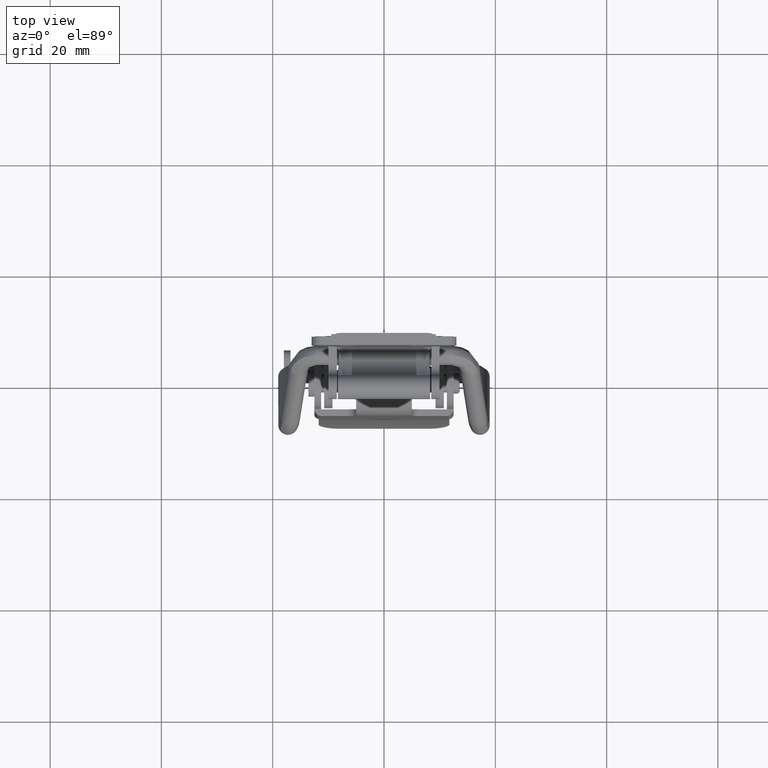
[diagram: clean part render]
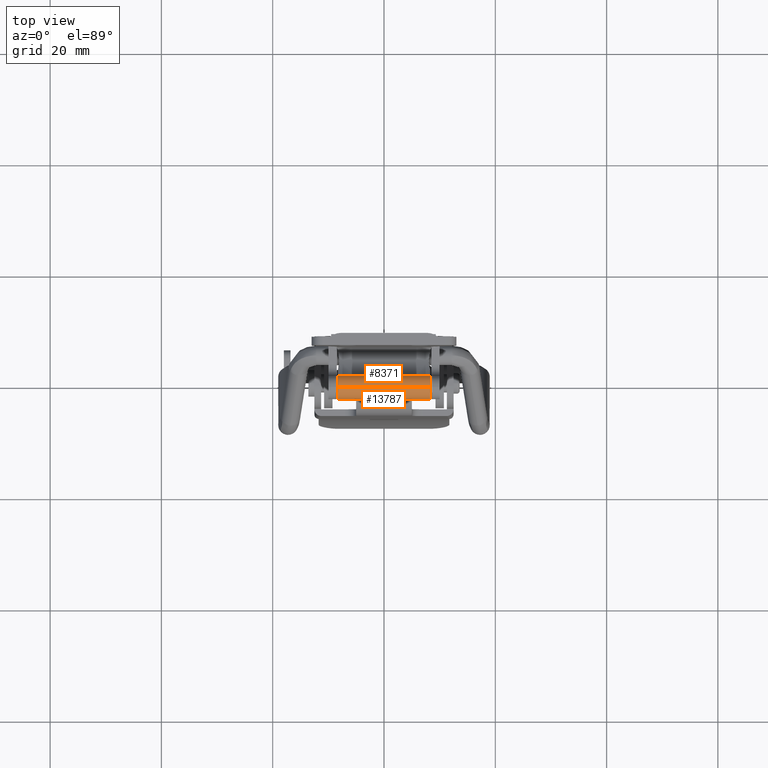
[diagram: same view with one multi-face feature highlighted, each face labeled with its STEP entity id]
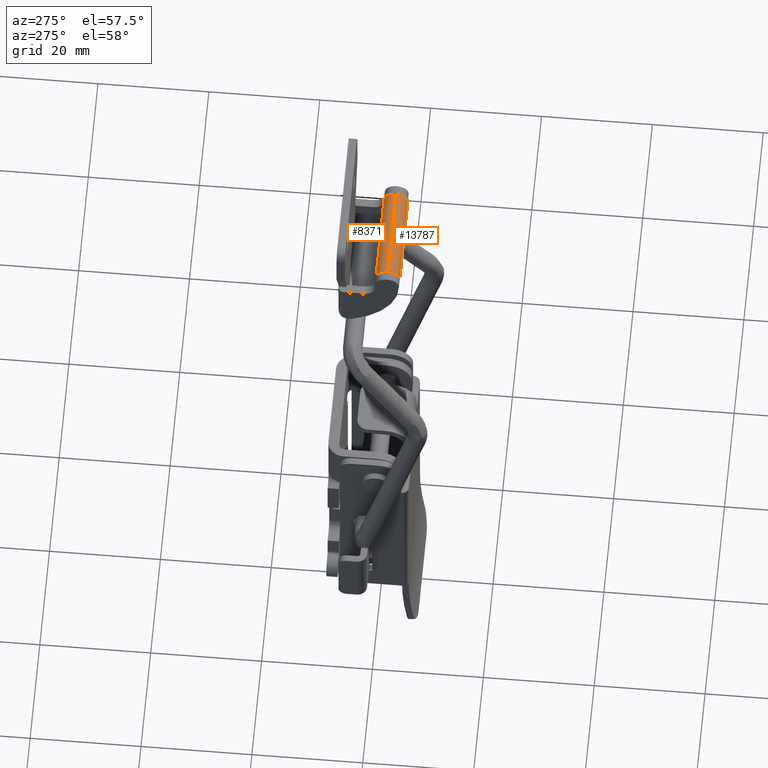
[diagram: same view with one multi-face feature highlighted, each face labeled with its STEP entity id]
A machine part, top view. The highlighted faces form ONE feature: a constant-radius fillet chain: 2 tangent blend faces with common blend radius 2.15 mm. The faces share edges in the B-rep.
A second angle (auxiliary view) of the same feature is appended — it is thin or edge-on in the first view.
Their STEP definitions:
[1] entity #13787 (Cylinder):
#491 = AXIS2_PLACEMENT_3D ( 'NONE', #9145, #13366, #4986 ) ;
#737 = EDGE_CURVE ( 'NONE', #17596, #17917, #11286, .T. ) ;
#1673 = VECTOR ( 'NONE', #2493, 1000.000000000000000 ) ;
#2493 = DIRECTION ( 'NONE',  ( -1.000000000000000000, 0.0000000000000000000, 0.0000000000000000000 ) ) ;
#2554 = CARTESIAN_POINT ( 'NONE',  ( 998.0000000000000000, -9.499996873179899400, -8.646332547720360800 ) ) ;
#2666 = DIRECTION ( 'NONE',  ( -1.000000000000000000, 0.0000000000000000000, 0.0000000000000000000 ) ) ;
#2823 = DIRECTION ( 'NONE',  ( -1.000000000000000000, 0.0000000000000000000, 0.0000000000000000000 ) ) ;
#4301 = CYLINDRICAL_SURFACE ( 'NONE', #491, 2.149999999995940000 ) ;
#4562 = EDGE_CURVE ( 'NONE', #12015, #17917, #15244, .T. ) ;
#4732 = DIRECTION ( 'NONE',  ( -1.000000000000000000, 0.0000000000000000000, 0.0000000000000000000 ) ) ;
#4986 = DIRECTION ( 'NONE',  ( 0.0000000000000000000, 0.0000000000000000000, 1.000000000000000000 ) ) ;
#5348 = CARTESIAN_POINT ( 'NONE',  ( 998.0000000000000000, -7.349999999996189400, -6.499999328709550100 ) ) ;
#5580 = AXIS2_PLACEMENT_3D ( 'NONE', #13103, #4732, #14499 ) ;
#5597 = CARTESIAN_POINT ( 'NONE',  ( -1.791569613529554900, -9.499996873176868900, -8.646332547720360800 ) ) ;
#5697 = EDGE_CURVE ( 'NONE', #13716, #12015, #17598, .T. ) ;
#5902 = EDGE_LOOP ( 'NONE', ( #17543, #16311, #16887, #8898 ) ) ;
#7951 = CARTESIAN_POINT ( 'NONE',  ( -1.791569613529554900, -7.349999999996189400, -6.499999328709550100 ) ) ;
#8898 = ORIENTED_EDGE ( 'NONE', *, *, #15902, .F. ) ;
#9055 = LINE ( 'NONE', #2554, #1673 ) ;
#9145 = CARTESIAN_POINT ( 'NONE',  ( 998.0000000000000000, -7.349999999996189400, -8.649999328705490600 ) ) ;
#11017 = DIRECTION ( 'NONE',  ( 0.0000000000000000000, 0.0000000000000000000, 1.000000000000000000 ) ) ;
#11286 = CIRCLE ( 'NONE', #13116, 2.149999999995940000 ) ;
#11724 = FACE_OUTER_BOUND ( 'NONE', #5902, .T. ) ;
#12015 = VERTEX_POINT ( 'NONE', #16778 ) ;
#12420 = CARTESIAN_POINT ( 'NONE',  ( -1.791569613529554900, -7.349999999996189400, -8.649999328705490600 ) ) ;
#13103 = CARTESIAN_POINT ( 'NONE',  ( 14.79156961369890100, -7.349999999996189400, -8.649999328705490600 ) ) ;
#13116 = AXIS2_PLACEMENT_3D ( 'NONE', #12420, #2666, #11017 ) ;
#13366 = DIRECTION ( 'NONE',  ( -1.000000000000000000, 0.0000000000000000000, 0.0000000000000000000 ) ) ;
#13716 = VERTEX_POINT ( 'NONE', #14690 ) ;
#13787 = ADVANCED_FACE ( 'NONE', ( #11724 ), #4301, .T. ) ;
#14499 = DIRECTION ( 'NONE',  ( 0.0000000000000000000, 0.0000000000000000000, 1.000000000000000000 ) ) ;
#14690 = CARTESIAN_POINT ( 'NONE',  ( 14.79156961369890100, -9.499996873176868900, -8.646332547720360800 ) ) ;
#14792 = VECTOR ( 'NONE', #2823, 1000.000000000000000 ) ;
#15244 = LINE ( 'NONE', #5348, #14792 ) ;
#15902 = EDGE_CURVE ( 'NONE', #13716, #17596, #9055, .T. ) ;
#16311 = ORIENTED_EDGE ( 'NONE', *, *, #4562, .T. ) ;
#16778 = CARTESIAN_POINT ( 'NONE',  ( 14.79156961369890100, -7.349999999996189400, -6.499999328709550100 ) ) ;
#16887 = ORIENTED_EDGE ( 'NONE', *, *, #737, .F. ) ;
#17543 = ORIENTED_EDGE ( 'NONE', *, *, #5697, .T. ) ;
#17596 = VERTEX_POINT ( 'NONE', #5597 ) ;
#17598 = CIRCLE ( 'NONE', #5580, 2.149999999995940000 ) ;
#17917 = VERTEX_POINT ( 'NONE', #7951 ) ;
[2] entity #8371 (Cylinder):
#186 = CARTESIAN_POINT ( 'NONE',  ( 14.79156961369890100, -5.200000000000240000, -8.649999328705510100 ) ) ;
#493 = EDGE_CURVE ( 'NONE', #12015, #18002, #7334, .T. ) ;
#2390 = AXIS2_PLACEMENT_3D ( 'NONE', #7433, #17199, #8850 ) ;
#2823 = DIRECTION ( 'NONE',  ( -1.000000000000000000, 0.0000000000000000000, 0.0000000000000000000 ) ) ;
#3950 = CARTESIAN_POINT ( 'NONE',  ( 998.0000000000000000, -7.349999999996189400, -8.649999328705490600 ) ) ;
#4217 = CARTESIAN_POINT ( 'NONE',  ( 998.0000000000000000, -5.200000000000299500, -8.649999328705490600 ) ) ;
#4562 = EDGE_CURVE ( 'NONE', #12015, #17917, #15244, .T. ) ;
#4607 = ORIENTED_EDGE ( 'NONE', *, *, #4562, .F. ) ;
#4666 = CIRCLE ( 'NONE', #2390, 2.149999999995940000 ) ;
#5348 = CARTESIAN_POINT ( 'NONE',  ( 998.0000000000000000, -7.349999999996189400, -6.499999328709550100 ) ) ;
#6508 = ORIENTED_EDGE ( 'NONE', *, *, #493, .T. ) ;
#7241 = AXIS2_PLACEMENT_3D ( 'NONE', #3950, #16566, #9565 ) ;
#7334 = CIRCLE ( 'NONE', #8782, 2.149999999995940000 ) ;
#7433 = CARTESIAN_POINT ( 'NONE',  ( -1.791569613529554900, -7.349999999996189400, -8.649999328705490600 ) ) ;
#7951 = CARTESIAN_POINT ( 'NONE',  ( -1.791569613529554900, -7.349999999996189400, -6.499999328709550100 ) ) ;
#8066 = EDGE_CURVE ( 'NONE', #18002, #17916, #16917, .T. ) ;
#8371 = ADVANCED_FACE ( 'NONE', ( #14288 ), #17549, .T. ) ;
#8613 = VECTOR ( 'NONE', #15373, 1000.000000000000000 ) ;
#8782 = AXIS2_PLACEMENT_3D ( 'NONE', #16914, #16310, #14912 ) ;
#8850 = DIRECTION ( 'NONE',  ( 0.0000000000000000000, 0.0000000000000000000, 1.000000000000000000 ) ) ;
#9565 = DIRECTION ( 'NONE',  ( 0.0000000000000000000, 0.0000000000000000000, 1.000000000000000000 ) ) ;
#12015 = VERTEX_POINT ( 'NONE', #16778 ) ;
#14288 = FACE_OUTER_BOUND ( 'NONE', #14673, .T. ) ;
#14673 = EDGE_LOOP ( 'NONE', ( #4607, #6508, #17681, #16631 ) ) ;
#14792 = VECTOR ( 'NONE', #2823, 1000.000000000000000 ) ;
#14912 = DIRECTION ( 'NONE',  ( 0.0000000000000000000, 0.0000000000000000000, 1.000000000000000000 ) ) ;
#15244 = LINE ( 'NONE', #5348, #14792 ) ;
#15373 = DIRECTION ( 'NONE',  ( -1.000000000000000000, 0.0000000000000000000, 0.0000000000000000000 ) ) ;
#16310 = DIRECTION ( 'NONE',  ( -1.000000000000000000, 0.0000000000000000000, 0.0000000000000000000 ) ) ;
#16315 = CARTESIAN_POINT ( 'NONE',  ( -1.791569613529554900, -5.200000000000240000, -8.649999328705510100 ) ) ;
#16566 = DIRECTION ( 'NONE',  ( -1.000000000000000000, 0.0000000000000000000, 0.0000000000000000000 ) ) ;
#16602 = EDGE_CURVE ( 'NONE', #17917, #17916, #4666, .T. ) ;
#16631 = ORIENTED_EDGE ( 'NONE', *, *, #16602, .F. ) ;
#16778 = CARTESIAN_POINT ( 'NONE',  ( 14.79156961369890100, -7.349999999996189400, -6.499999328709550100 ) ) ;
#16914 = CARTESIAN_POINT ( 'NONE',  ( 14.79156961369890100, -7.349999999996189400, -8.649999328705490600 ) ) ;
#16917 = LINE ( 'NONE', #4217, #8613 ) ;
#17199 = DIRECTION ( 'NONE',  ( -1.000000000000000000, 0.0000000000000000000, 0.0000000000000000000 ) ) ;
#17549 = CYLINDRICAL_SURFACE ( 'NONE', #7241, 2.149999999995940000 ) ;
#17681 = ORIENTED_EDGE ( 'NONE', *, *, #8066, .T. ) ;
#17916 = VERTEX_POINT ( 'NONE', #16315 ) ;
#17917 = VERTEX_POINT ( 'NONE', #7951 ) ;
#18002 = VERTEX_POINT ( 'NONE', #186 ) ;